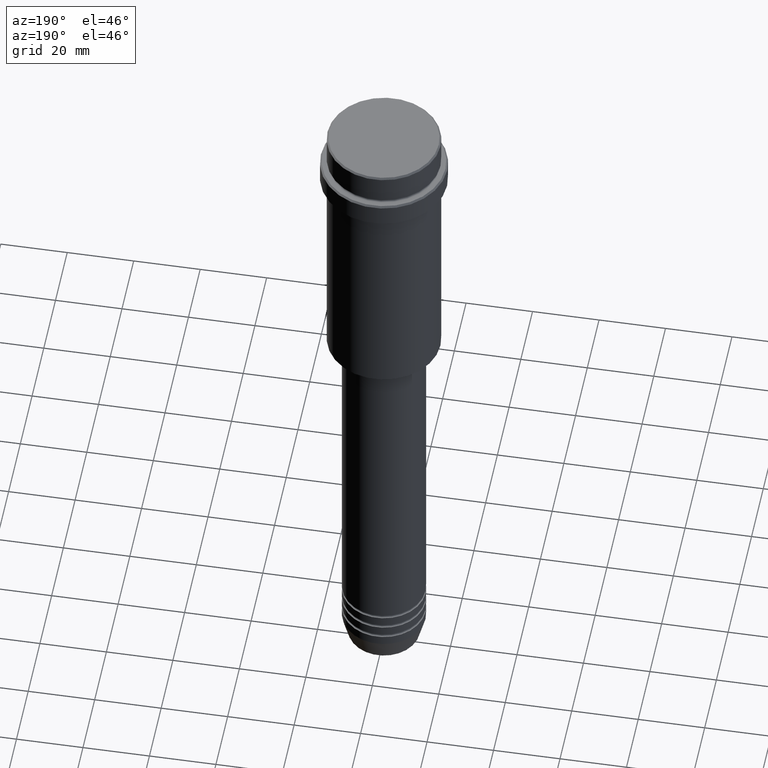
[diagram: clean part render]
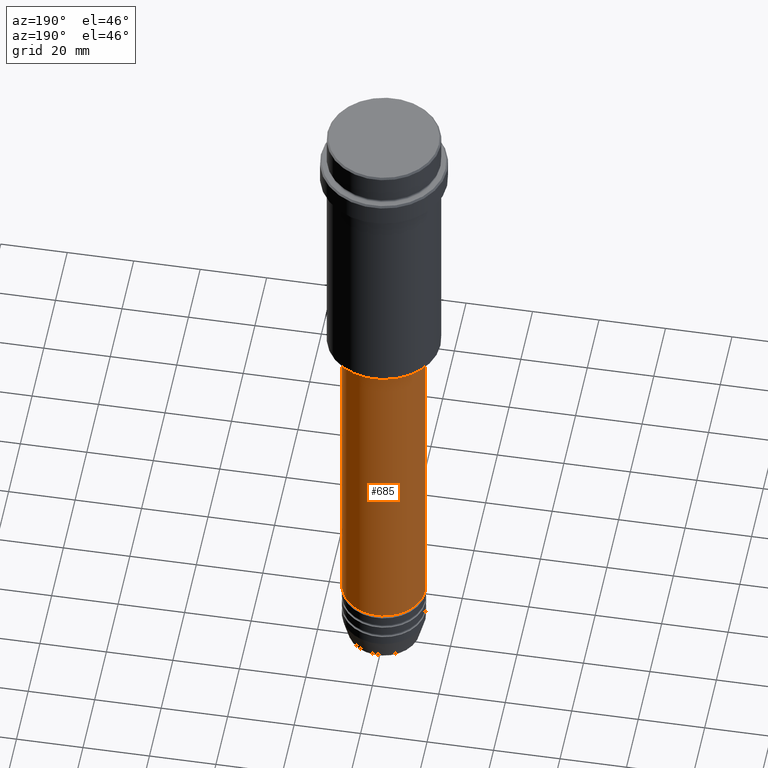
[diagram: same view with one face highlighted and labeled with its STEP entity id]
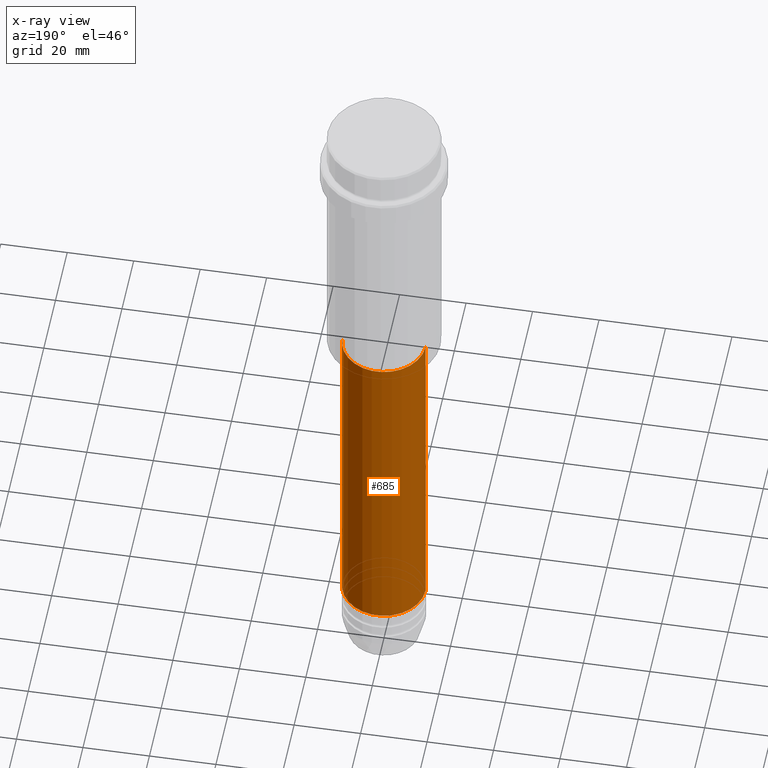
[diagram: x-ray of the same camera — body ghosted, the highlighted face saturated]
A machine part, auxiliary view. The second image highlights one B-rep face of the part: STEP entity #685.
The next image is the same camera in x-ray: the body ghosted, the highlighted face saturated — about 0% of this face is hidden behind the body in this view.
In plain terms, the highlighted cylindrical surface (partial cylindrical patch) has radius 12.5 mm, axis along (-0, -0, 1).
Its self-contained STEP definition (entity closure, byte-faithful):
#16 = VERTEX_POINT ( 'NONE', #670 ) ;
#34 = CARTESIAN_POINT ( 'NONE',  ( -12.50000000000000000, 1.530808498934191521E-15, -87.00000000000000000 ) ) ;
#43 = DIRECTION ( 'NONE',  ( -0.000000000000000000, -0.000000000000000000, 1.000000000000000000 ) ) ;
#73 = VERTEX_POINT ( 'NONE', #1222 ) ;
#84 = CARTESIAN_POINT ( 'NONE',  ( 0.000000000000000000, 0.000000000000000000, 0.000000000000000000 ) ) ;
#139 = EDGE_CURVE ( 'NONE', #16, #73, #211, .T. ) ;
#195 = VECTOR ( 'NONE', #43, 1000.000000000000000 ) ;
#204 = CARTESIAN_POINT ( 'NONE',  ( -12.50000000000000000, 1.530808498934191521E-15, 0.000000000000000000 ) ) ;
#211 = CIRCLE ( 'NONE', #845, 12.50000000000000000 ) ;
#215 = CARTESIAN_POINT ( 'NONE',  ( 0.000000000000000000, 0.000000000000000000, -190.9999999999999147 ) ) ;
#309 = DIRECTION ( 'NONE',  ( 1.000000000000000000, 0.000000000000000000, 0.000000000000000000 ) ) ;
#367 = VERTEX_POINT ( 'NONE', #34 ) ;
#391 = ORIENTED_EDGE ( 'NONE', *, *, #139, .T. ) ;
#530 = VECTOR ( 'NONE', #1126, 1000.000000000000000 ) ;
#533 = DIRECTION ( 'NONE',  ( 1.000000000000000000, 0.000000000000000000, 0.000000000000000000 ) ) ;
#547 = CARTESIAN_POINT ( 'NONE',  ( 0.000000000000000000, 0.000000000000000000, -87.00000000000000000 ) ) ;
#569 = ORIENTED_EDGE ( 'NONE', *, *, #607, .T. ) ;
#607 = EDGE_CURVE ( 'NONE', #73, #367, #1177, .T. ) ;
#627 = ORIENTED_EDGE ( 'NONE', *, *, #1032, .F. ) ;
#634 = ORIENTED_EDGE ( 'NONE', *, *, #948, .F. ) ;
#670 = CARTESIAN_POINT ( 'NONE',  ( 12.50000000000000000, 0.000000000000000000, -190.9999999999999147 ) ) ;
#685 = ADVANCED_FACE ( 'NONE', ( #1074 ), #1284, .T. ) ;
#690 = LINE ( 'NONE', #799, #195 ) ;
#752 = EDGE_LOOP ( 'NONE', ( #391, #569, #627, #634 ) ) ;
#763 = AXIS2_PLACEMENT_3D ( 'NONE', #84, #1294, #309 ) ;
#799 = CARTESIAN_POINT ( 'NONE',  ( 12.50000000000000000, 0.000000000000000000, 0.000000000000000000 ) ) ;
#845 = AXIS2_PLACEMENT_3D ( 'NONE', #215, #1304, #533 ) ;
#948 = EDGE_CURVE ( 'NONE', #16, #1301, #690, .T. ) ;
#1032 = EDGE_CURVE ( 'NONE', #1301, #367, #1114, .T. ) ;
#1065 = CARTESIAN_POINT ( 'NONE',  ( 12.50000000000000000, 0.000000000000000000, -87.00000000000000000 ) ) ;
#1074 = FACE_OUTER_BOUND ( 'NONE', #752, .T. ) ;
#1114 = CIRCLE ( 'NONE', #1389, 12.50000000000000000 ) ;
#1126 = DIRECTION ( 'NONE',  ( -0.000000000000000000, -0.000000000000000000, 1.000000000000000000 ) ) ;
#1177 = LINE ( 'NONE', #204, #530 ) ;
#1196 = DIRECTION ( 'NONE',  ( -0.000000000000000000, -0.000000000000000000, 1.000000000000000000 ) ) ;
#1213 = DIRECTION ( 'NONE',  ( 1.000000000000000000, 0.000000000000000000, 0.000000000000000000 ) ) ;
#1222 = CARTESIAN_POINT ( 'NONE',  ( -12.50000000000000000, 1.530808498934191521E-15, -190.9999999999999147 ) ) ;
#1284 = CYLINDRICAL_SURFACE ( 'NONE', #763, 12.50000000000000000 ) ;
#1294 = DIRECTION ( 'NONE',  ( -0.000000000000000000, -0.000000000000000000, 1.000000000000000000 ) ) ;
#1301 = VERTEX_POINT ( 'NONE', #1065 ) ;
#1304 = DIRECTION ( 'NONE',  ( -0.000000000000000000, -0.000000000000000000, 1.000000000000000000 ) ) ;
#1389 = AXIS2_PLACEMENT_3D ( 'NONE', #547, #1196, #1213 ) ;